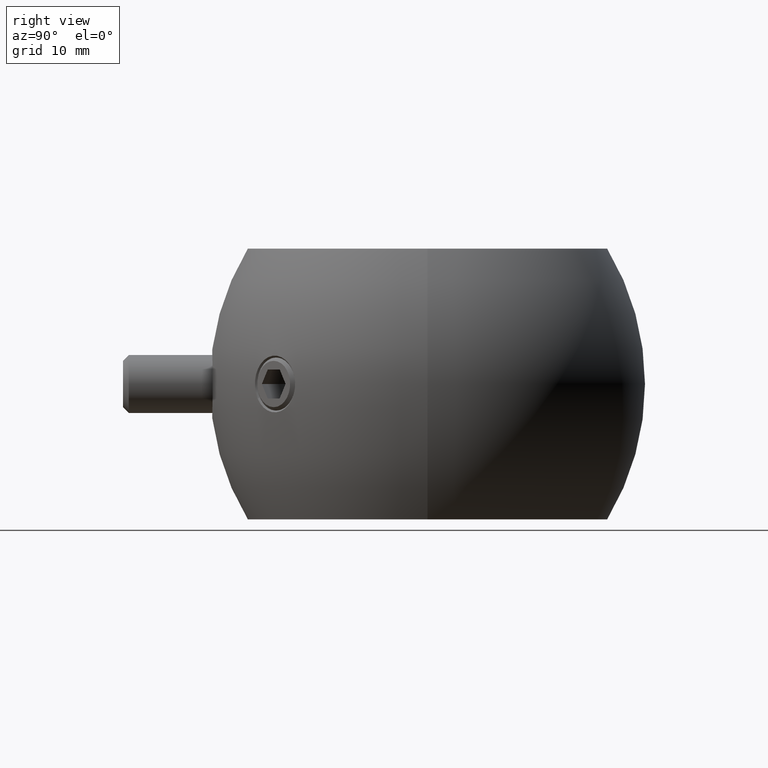
[diagram: clean part render]
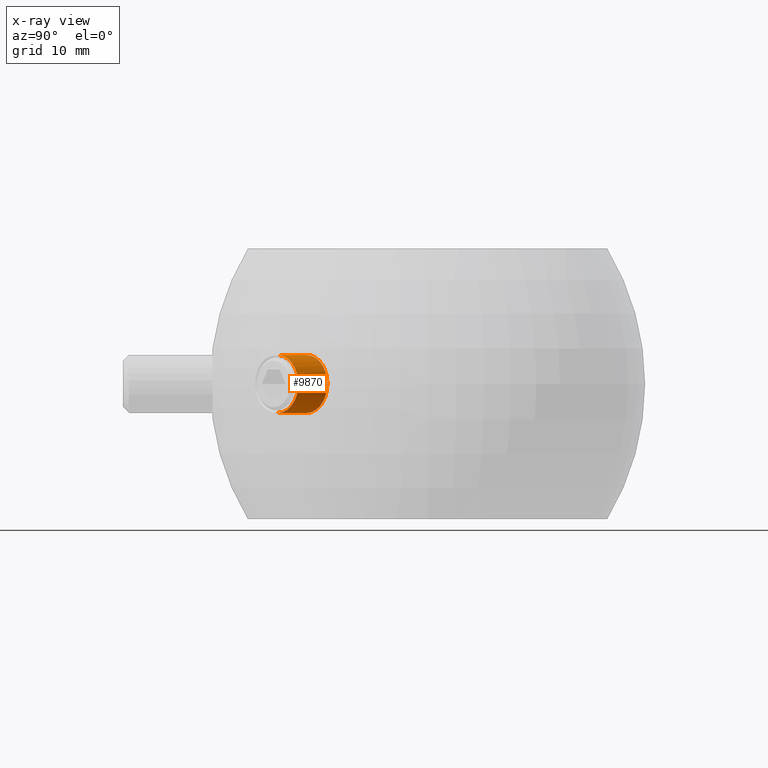
[diagram: x-ray — body ghosted, one internal face saturated and labeled with its STEP entity id]
A machine part, right view, then the same camera in x-ray: the body is ghosted and one INTERNAL B-rep face — a face not visible from any outside direction — is saturated and labeled: STEP entity #9870.
In plain terms, the highlighted cylindrical surface (edge-blend (fillet) strip) has radius 3 mm, axis along (-0.7071, 0.7071, -0).
Its self-contained STEP definition (entity closure, byte-faithful):
#1316 = FACE_OUTER_BOUND ( 'NONE', #20334, .T. ) ;
#1723 = CARTESIAN_POINT ( 'NONE',  ( 1.149999999999986811, -6.018531076210112041E-33, 3.000000000000000444 ) ) ;
#1771 = CIRCLE ( 'NONE', #15149, 3.000000000000000444 ) ;
#2269 = AXIS2_PLACEMENT_3D ( 'NONE', #11944, #18763, #15436 ) ;
#2778 = CARTESIAN_POINT ( 'NONE',  ( 1.149999999999986811, 3.000000000000000444, 0.000000000000000000 ) ) ;
#3151 = CARTESIAN_POINT ( 'NONE',  ( 5.399999999999998579, 3.673940397442060361E-16, -3.000000000000000444 ) ) ;
#3576 = AXIS2_PLACEMENT_3D ( 'NONE', #20571, #16966, #11822 ) ;
#3941 = VERTEX_POINT ( 'NONE', #10243 ) ;
#4509 = EDGE_CURVE ( 'NONE', #8678, #9804, #7595, .T. ) ;
#5339 = ORIENTED_EDGE ( 'NONE', *, *, #13116, .F. ) ;
#5414 = VERTEX_POINT ( 'NONE', #1723 ) ;
#7595 = CIRCLE ( 'NONE', #10356, 3.000000000000000444 ) ;
#7800 = CARTESIAN_POINT ( 'NONE',  ( 5.399999999999998579, 0.000000000000000000, 3.000000000000000444 ) ) ;
#7957 = VERTEX_POINT ( 'NONE', #2778 ) ;
#8678 = VERTEX_POINT ( 'NONE', #7800 ) ;
#8796 = ORIENTED_EDGE ( 'NONE', *, *, #14786, .F. ) ;
#9060 = CIRCLE ( 'NONE', #3576, 3.000000000000000444 ) ;
#9804 = VERTEX_POINT ( 'NONE', #3151 ) ;
#9870 = ADVANCED_FACE ( 'NONE', ( #1316 ), #14362, .T. ) ;
#10140 = DIRECTION ( 'NONE',  ( -1.000000000000000000, 0.000000000000000000, 0.000000000000000000 ) ) ;
#10243 = CARTESIAN_POINT ( 'NONE',  ( 1.149999999999986811, 3.673940397442060361E-16, -3.000000000000000444 ) ) ;
#10356 = AXIS2_PLACEMENT_3D ( 'NONE', #15722, #10140, #15123 ) ;
#10699 = LINE ( 'NONE', #20426, #19524 ) ;
#11182 = ORIENTED_EDGE ( 'NONE', *, *, #21121, .F. ) ;
#11822 = DIRECTION ( 'NONE',  ( -7.228014483236694583E-17, -1.000000000000000000, 0.000000000000000000 ) ) ;
#11829 = DIRECTION ( 'NONE',  ( -1.000000000000000000, -0.000000000000000000, -0.000000000000000000 ) ) ;
#11944 = CARTESIAN_POINT ( 'NONE',  ( 6.000000000000000000, 0.000000000000000000, 0.000000000000000000 ) ) ;
#13116 = EDGE_CURVE ( 'NONE', #5414, #7957, #9060, .T. ) ;
#13201 = CARTESIAN_POINT ( 'NONE',  ( 1.149999999999986811, -4.538988261647290828E-17, 0.000000000000000000 ) ) ;
#13276 = DIRECTION ( 'NONE',  ( -1.000000000000000000, 3.946946314475950647E-17, -0.000000000000000000 ) ) ;
#13390 = CARTESIAN_POINT ( 'NONE',  ( 6.000000000000000000, 3.673940397442060361E-16, -3.000000000000000444 ) ) ;
#14362 = CYLINDRICAL_SURFACE ( 'NONE', #2269, 3.000000000000000444 ) ;
#14786 = EDGE_CURVE ( 'NONE', #7957, #3941, #1771, .T. ) ;
#15123 = DIRECTION ( 'NONE',  ( 0.000000000000000000, 0.000000000000000000, -1.000000000000000000 ) ) ;
#15149 = AXIS2_PLACEMENT_3D ( 'NONE', #13201, #13276, #16693 ) ;
#15436 = DIRECTION ( 'NONE',  ( 0.000000000000000000, 0.000000000000000000, 1.000000000000000000 ) ) ;
#15722 = CARTESIAN_POINT ( 'NONE',  ( 5.399999999999998579, 0.000000000000000000, 0.000000000000000000 ) ) ;
#16693 = DIRECTION ( 'NONE',  ( -7.228014483236694583E-17, -1.000000000000000000, 0.000000000000000000 ) ) ;
#16767 = ORIENTED_EDGE ( 'NONE', *, *, #19301, .T. ) ;
#16966 = DIRECTION ( 'NONE',  ( -1.000000000000000000, 3.946946314475950647E-17, -0.000000000000000000 ) ) ;
#18620 = DIRECTION ( 'NONE',  ( -1.000000000000000000, -0.000000000000000000, -0.000000000000000000 ) ) ;
#18763 = DIRECTION ( 'NONE',  ( -1.000000000000000000, -0.000000000000000000, -0.000000000000000000 ) ) ;
#19301 = EDGE_CURVE ( 'NONE', #9804, #3941, #20640, .T. ) ;
#19524 = VECTOR ( 'NONE', #11829, 1000.000000000000000 ) ;
#19538 = ORIENTED_EDGE ( 'NONE', *, *, #4509, .T. ) ;
#20334 = EDGE_LOOP ( 'NONE', ( #19538, #16767, #8796, #5339, #11182 ) ) ;
#20426 = CARTESIAN_POINT ( 'NONE',  ( 6.000000000000000000, 0.000000000000000000, 3.000000000000000444 ) ) ;
#20571 = CARTESIAN_POINT ( 'NONE',  ( 1.149999999999986811, -4.538988261647290828E-17, 0.000000000000000000 ) ) ;
#20640 = LINE ( 'NONE', #13390, #21417 ) ;
#21121 = EDGE_CURVE ( 'NONE', #8678, #5414, #10699, .T. ) ;
#21417 = VECTOR ( 'NONE', #18620, 1000.000000000000000 ) ;